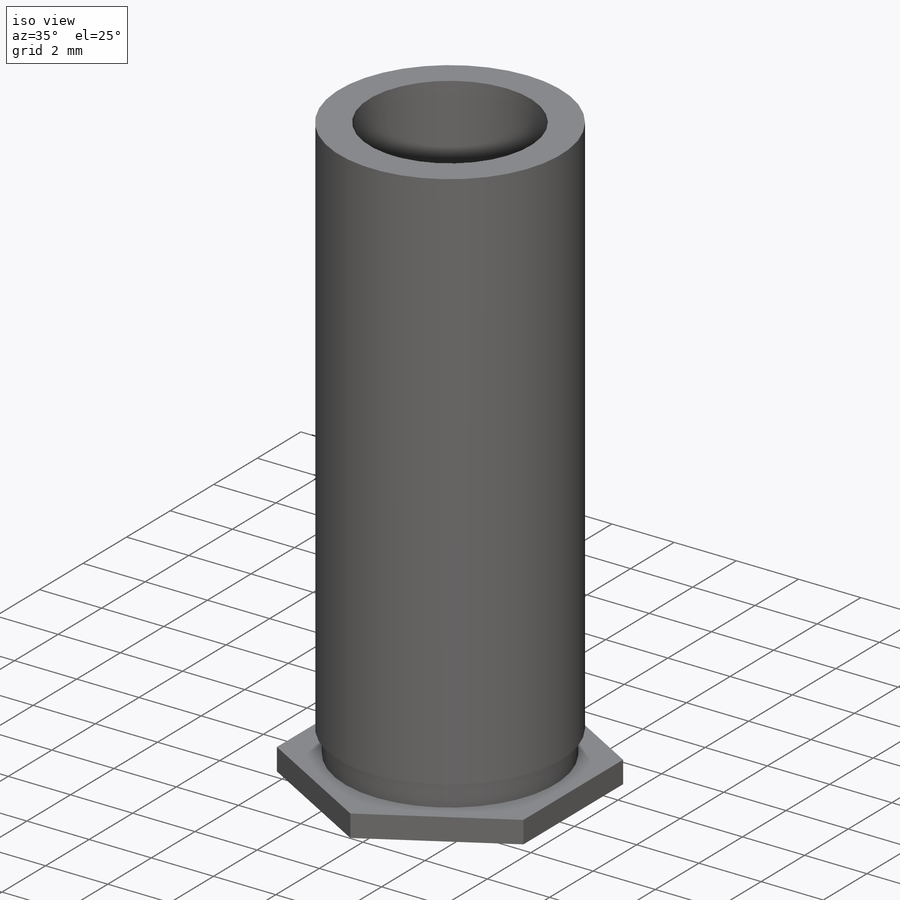
[diagram: iso view]
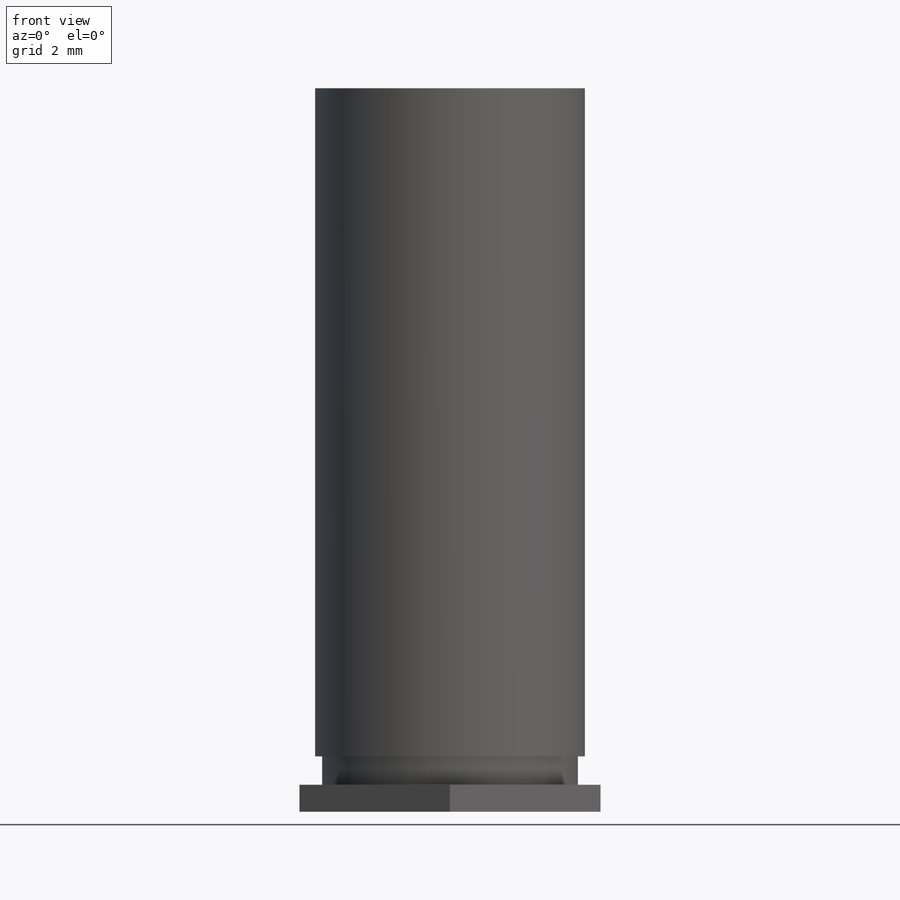
[diagram: front view]
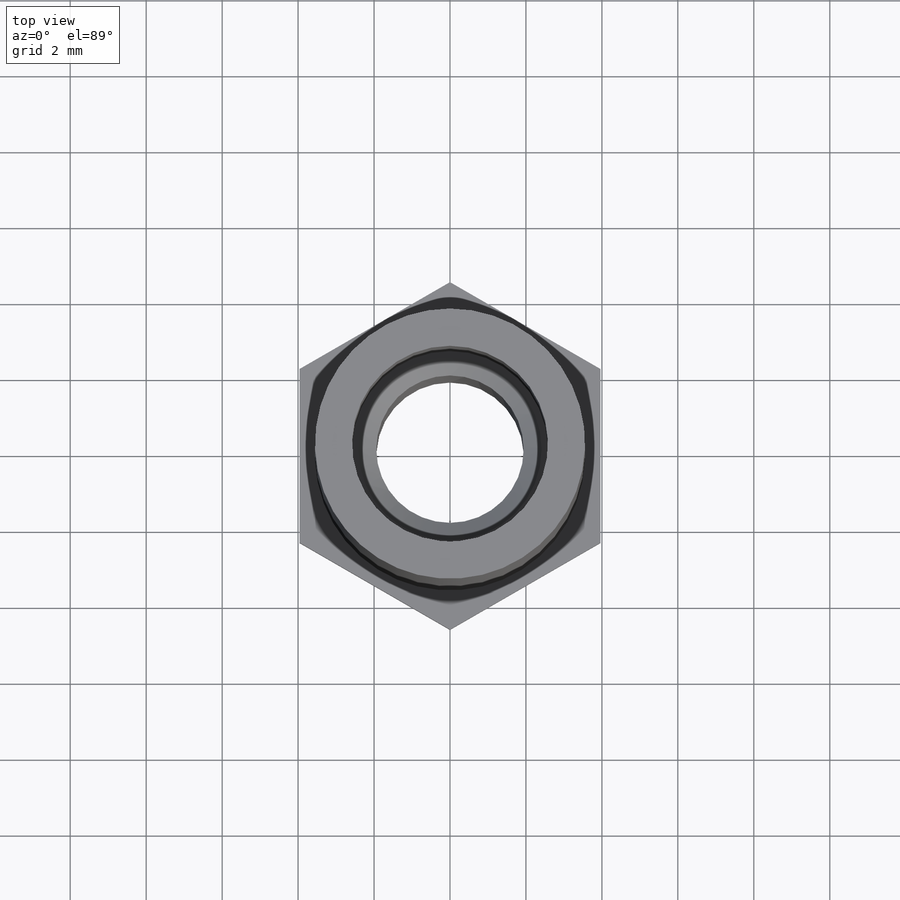
[diagram: top view]
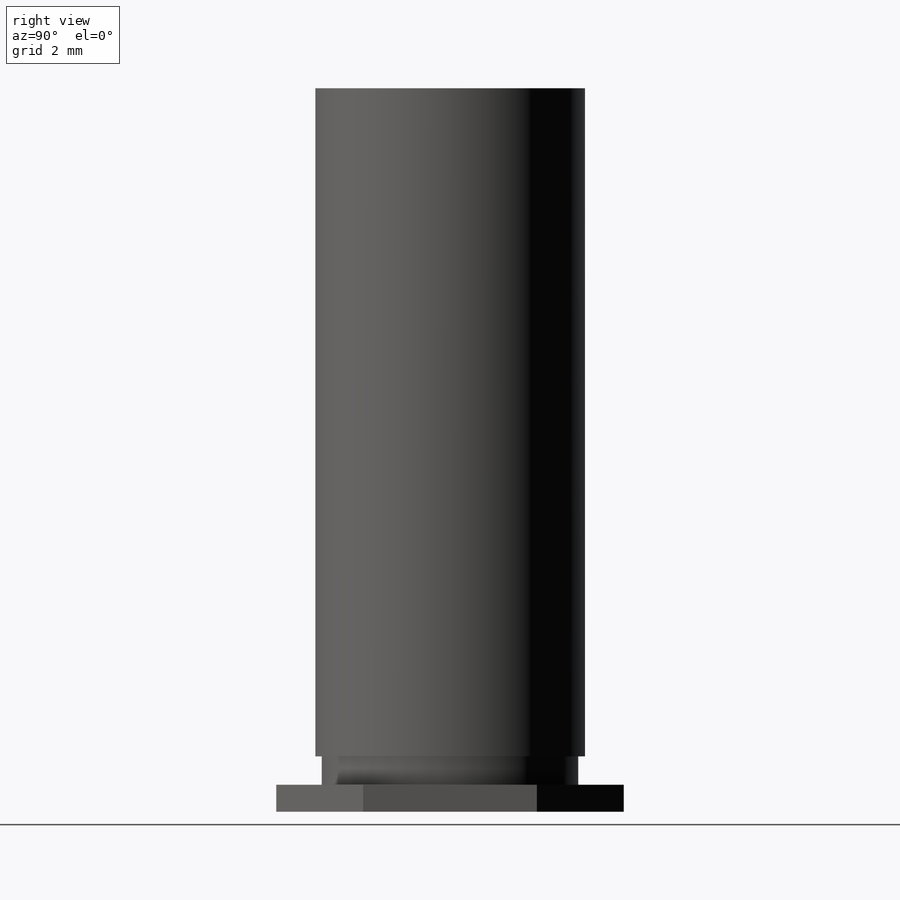
[diagram: right view]
SOLIDWORKS PART (.sldprt)
format: sldprt  version: not decoded by parser v0  size: 1,211,392 bytes
history: native  units: mm
features: sketch x5, plane x4, revolve x3, thread x2, cut_revolve x2, material x1, pattern_linear x1, cut_extrude x1 (+9 scaffold rows collapsed)
feature tree (28):
  scaffold x9  (default folders/planes/origin — collapsed)
  material  "Material <not specified>"
  plane  "Plane1"
  plane  "Plane2"
  plane  "Plane3"
  sketch  "BodySke"  dims[c1.E_dia=7.366mm c1.C_dia=9.8806mm c1.A_ht=~0.60071mm c1.T_ht=4.318mm c1.Thread_min=2.7051mm c1.Clinch_dia=10.6172mm c1.Clinch_ht=~0.54864mm c1.C_len=0.0762mm c1.D3=~1.38811mm c1.Angle=~51.551076deg c1.Clinching_ht=~0.16383mm c1.D2=~1.66751mm c2.D2=~51.551076deg c2.D1=60.0deg c2.Advance=1.27mm c2.Thickness=1.0922mm c2.C_dia=5.3848mm c2.Length=19.05mm c2.Thread_limit=~19.04492mm c3.Advance=~0.79248mm c3.Thread_depth=~19.04492mm c3.Drill_depth=19.05mm c3.Length=19.05mm c3.Clinching_ht=~0.53848mm c3.Groove_wid=~0.565404mm c3.Groove_dia=~5.11556mm c3.D1=~0.00254mm]
  revolve  "Body"  [1 undecoded]
  thread  "ThreadCosmetic"  [2 undecoded]
  cut_revolve  "EndChamfer"  [1 undecoded]
  sketch  "EndChamferSke"  dims[c1.Thread_nominal=3.5052mm c1.D1=0.254mm c1.D2=0.762mm c2.D2=34.99deg c2.Thread_min=2.7051mm c2.Inset=0.127mm c2.Inset_far=0.254mm c3.Inset=7.9248mm c3.D4=~0.38608mm c3.D1=0.6223mm c4.D1=34.99deg c4.D2=34.99deg c4.B_dia=3.9624mm c5.D1=360.0deg c5.Thread_nominal=3.5052mm]
  revolve  "TapDrill"  [1 undecoded]
  sketch  "TapDriSke"  dims[c1.D1=~2.851171mm c2.D1=135.0deg c2.Depth=~23.00732mm c3.D1=360.0deg c4.D1=360.0deg]
  plane  "Plane4"  Offset=0.54864mm CurrentVersion=0mm EditFunction=0mm Type=0mm SubType=0mm Application=0mm
  thread  "CimPEMSettings6.016572"  Diameter=0mm THREAD_DISPLAY=0mm STANDARD=0mm TYPE=0mm SIZE=0mm COSMETIC_THREAD=0mm AUTO_SAVE=0mm INSERT_MODE=0mm  [1 undecoded]
  cut_revolve  "CimPEMSettings6.0"  THREAD_DISPLAY=0mm STANDARD=0mm TYPE=0mm SIZE=0mm COSMETIC_THREAD=0mm AUTO_SAVE=0mm INSERT_MODE=0mm  [1 undecoded]
  sketch  "ThdSchSke"  dims[D1=~1.157094mm Vee_angle=70.0deg Thread_nominal=3.5052mm Thread_min=2.7051mm Thread_limit=9.525mm]
  revolve  "ThreadSchematic"  Angle=360deg
  pattern_linear  "ThdSchPat"  Count1=16 Count2=1 Spacing1=0.741341mm Spacing2=50mm Num_threads=16 Advance=0.741341mm
  sketch  "HexDieSke"  dims[Width_across_flats=6.35mm OD=7.3914mm]
  cut_extrude  "HexDie"  Depth=0.53848mm
decode coverage: 10 of 14 modeling features carry decoded parameters
note: ~ marks probable driven/reference dimensions
note: 7 parameter values undecoded
summary: no parameter record found for 5 features
note: suppression state not decoded; provenance and decode notes live in map.json
